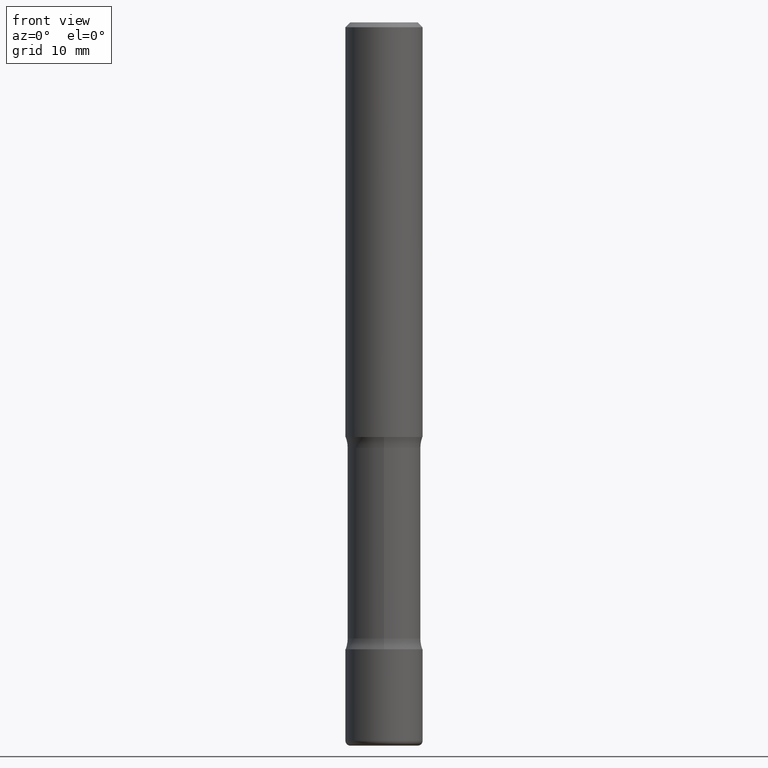
[diagram: clean part render]
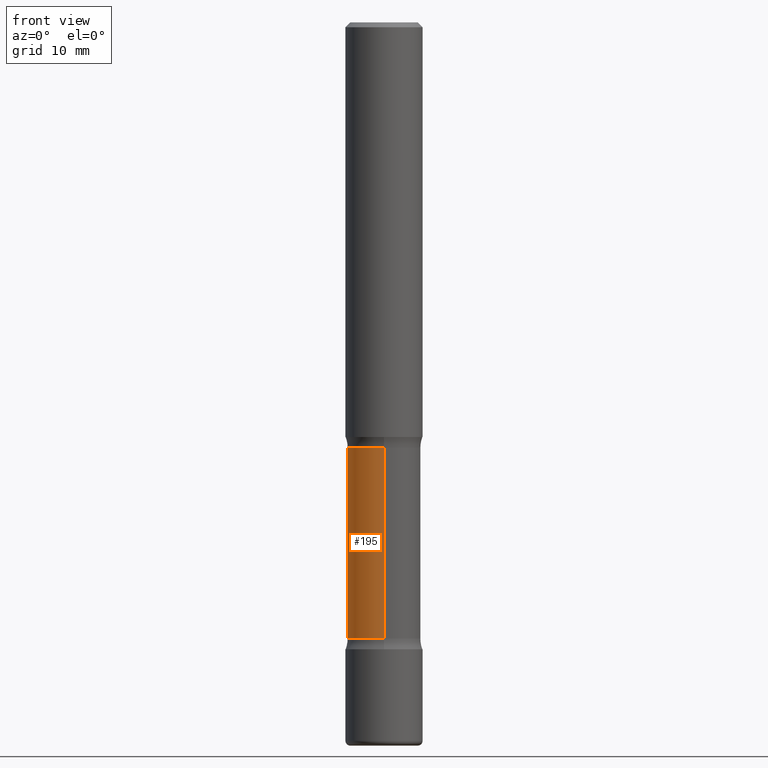
[diagram: same view with one face highlighted and labeled with its STEP entity id]
A machine part, front view. The second image highlights one B-rep face of the part: STEP entity #195.
In plain terms, the highlighted cylindrical surface (partial cylindrical patch) has radius 3.7973 mm, axis along (0, -0, -1).
Its self-contained STEP definition (entity closure, byte-faithful):
#4 = ORIENTED_EDGE ( 'NONE', *, *, #114, .T. ) ;
#16 = ORIENTED_EDGE ( 'NONE', *, *, #553, .F. ) ;
#32 = LINE ( 'NONE', #379, #36 ) ;
#36 = VECTOR ( 'NONE', #278, 39.37007874015748143 ) ;
#53 = CARTESIAN_POINT ( 'NONE',  ( 1.043952920314158531E-15, 0.1494999999999912510, -2.515099999999999003 ) ) ;
#108 = FACE_OUTER_BOUND ( 'NONE', #130, .T. ) ;
#114 = EDGE_CURVE ( 'NONE', #162, #457, #406, .T. ) ;
#124 = EDGE_CURVE ( 'NONE', #213, #162, #312, .T. ) ;
#130 = EDGE_LOOP ( 'NONE', ( #16, #488, #4, #449 ) ) ;
#131 = CARTESIAN_POINT ( 'NONE',  ( 4.702483345758239850E-29, -5.413541035302621061E-15, -1.737000000000000099 ) ) ;
#147 = DIRECTION ( 'NONE',  ( 6.982962677686265133E-15, 1.000000000000000000, -3.654646145370252101E-15 ) ) ;
#154 = EDGE_CURVE ( 'NONE', #253, #457, #432, .T. ) ;
#162 = VERTEX_POINT ( 'NONE', #202 ) ;
#191 = CARTESIAN_POINT ( 'NONE',  ( 7.003224572158122372E-29, -1.062148468046519830E-14, -2.952799999999999869 ) ) ;
#195 = ADVANCED_FACE ( 'NONE', ( #108 ), #286, .T. ) ;
#202 = CARTESIAN_POINT ( 'NONE',  ( 1.043952920314138809E-15, 0.1494999999999938878, -1.737000000000000544 ) ) ;
#208 = VECTOR ( 'NONE', #538, 39.37007874015748143 ) ;
#209 = AXIS2_PLACEMENT_3D ( 'NONE', #191, #428, #516 ) ;
#213 = VERTEX_POINT ( 'NONE', #256 ) ;
#253 = VERTEX_POINT ( 'NONE', #532 ) ;
#256 = CARTESIAN_POINT ( 'NONE',  ( -1.053086442657879041E-15, -0.1495000000000047125, -1.736999999999999433 ) ) ;
#271 = DIRECTION ( 'NONE',  ( 1.892368174370687992E-29, -4.283552924134379994E-15, -1.000000000000000000 ) ) ;
#278 = DIRECTION ( 'NONE',  ( 1.892368174370687992E-29, -4.283552924134379994E-15, -1.000000000000000000 ) ) ;
#286 = CYLINDRICAL_SURFACE ( 'NONE', #209, 0.1494999999999996332 ) ;
#312 = CIRCLE ( 'NONE', #470, 0.1494999999999993001 ) ;
#334 = AXIS2_PLACEMENT_3D ( 'NONE', #471, #377, #147 ) ;
#377 = DIRECTION ( 'NONE',  ( 1.892368174370687992E-29, -4.283552924134379994E-15, -1.000000000000000000 ) ) ;
#379 = CARTESIAN_POINT ( 'NONE',  ( -1.025644450666771294E-15, -0.1495000000000102358, -2.952799999999998981 ) ) ;
#406 = LINE ( 'NONE', #415, #208 ) ;
#415 = CARTESIAN_POINT ( 'NONE',  ( 1.043952920314164053E-15, 0.1494999999999890028, -2.952800000000000313 ) ) ;
#428 = DIRECTION ( 'NONE',  ( 1.892368174370687992E-29, -4.283552924134379994E-15, -1.000000000000000000 ) ) ;
#432 = CIRCLE ( 'NONE', #334, 0.1494999999999999940 ) ;
#449 = ORIENTED_EDGE ( 'NONE', *, *, #154, .F. ) ;
#457 = VERTEX_POINT ( 'NONE', #53 ) ;
#468 = DIRECTION ( 'NONE',  ( 6.982962677686264344E-15, 1.000000000000000000, -3.654646145370268667E-15 ) ) ;
#470 = AXIS2_PLACEMENT_3D ( 'NONE', #131, #271, #468 ) ;
#471 = CARTESIAN_POINT ( 'NONE',  ( 6.174935022236070014E-29, -8.746573565571573705E-15, -2.515099999999998559 ) ) ;
#488 = ORIENTED_EDGE ( 'NONE', *, *, #124, .T. ) ;
#516 = DIRECTION ( 'NONE',  ( 6.982962677686265133E-15, 1.000000000000000000, -3.654646145370260778E-15 ) ) ;
#532 = CARTESIAN_POINT ( 'NONE',  ( -1.053086442657868983E-15, -0.1495000000000087370, -2.515099999999998115 ) ) ;
#538 = DIRECTION ( 'NONE',  ( 1.892368174370687992E-29, -4.283552924134379994E-15, -1.000000000000000000 ) ) ;
#553 = EDGE_CURVE ( 'NONE', #213, #253, #32, .T. ) ;